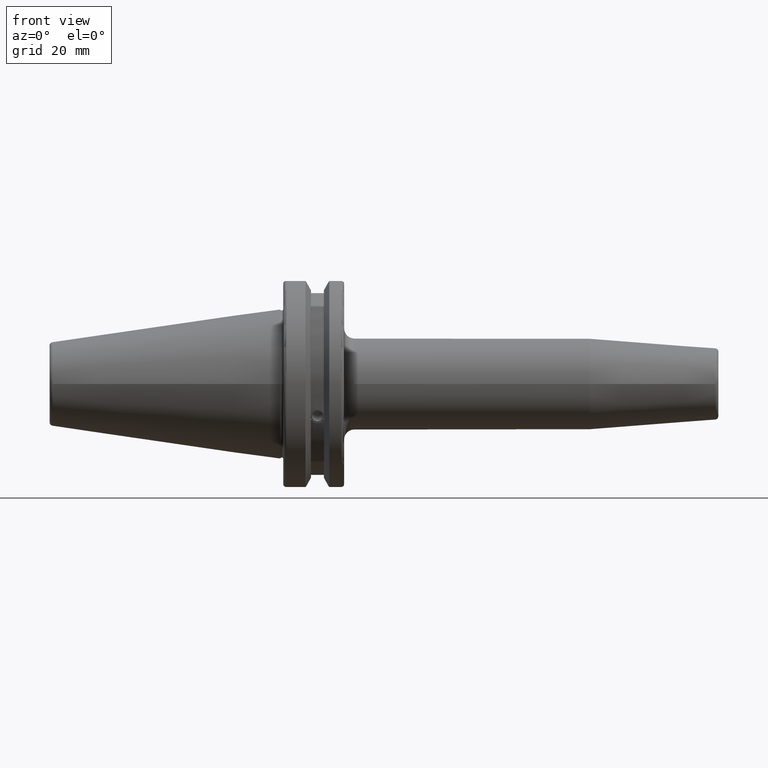
[diagram: clean part render]
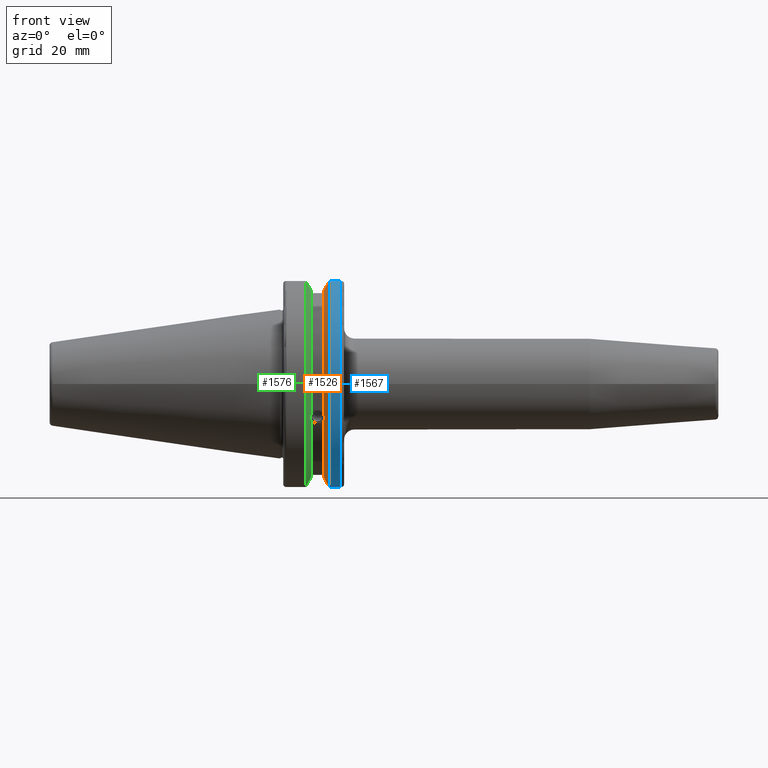
[diagram: same view with three faces highlighted in distinct colors, each labeled with its STEP entity id]
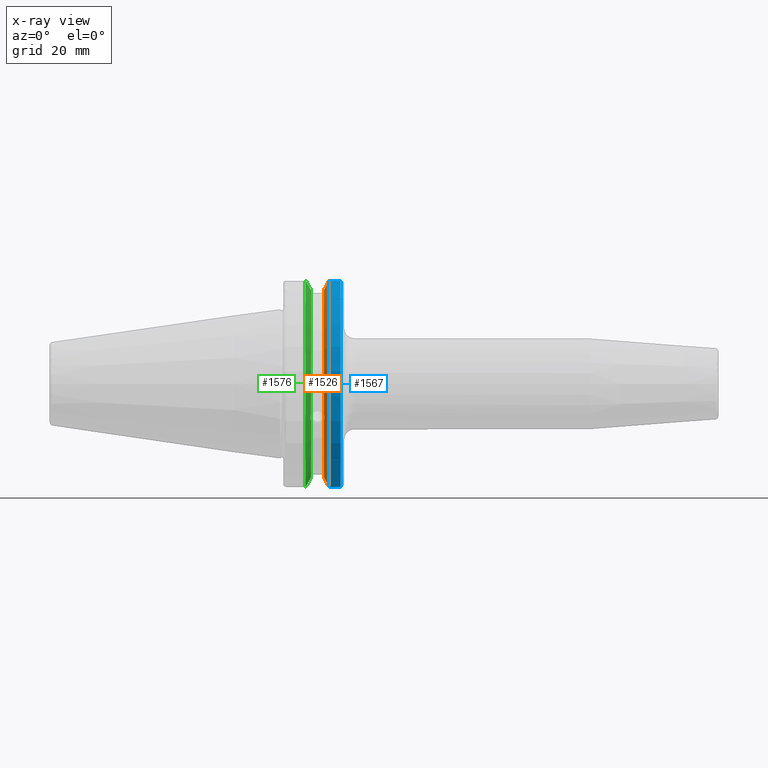
[diagram: x-ray of the same camera — body ghosted, the three highlighted faces saturated]
A machine part, front view with three faces highlighted in distinct colors.
The next image is the same camera in x-ray (body ghosted, the three faces saturated) — at least one of them is partly hidden behind the body in this view.
Their STEP definitions:

[orange] entity #1526 — the highlighted conical surface has half-angle 60 deg.
#15=(
BOUNDED_CURVE()
B_SPLINE_CURVE(2,(#2561,#2562,#2563),.UNSPECIFIED.,.F.,.F.)
B_SPLINE_CURVE_WITH_KNOTS((3,3),(0.,0.276549142795441),.UNSPECIFIED.)
CURVE()
GEOMETRIC_REPRESENTATION_ITEM()
RATIONAL_B_SPLINE_CURVE((1.,1.00095203903848,1.0003161444499))
REPRESENTATION_ITEM('')
);
#16=(
BOUNDED_CURVE()
B_SPLINE_CURVE(2,(#2565,#2566,#2567),.UNSPECIFIED.,.F.,.F.)
B_SPLINE_CURVE_WITH_KNOTS((3,3),(0.,0.0639048713675827),.UNSPECIFIED.)
CURVE()
GEOMETRIC_REPRESENTATION_ITEM()
RATIONAL_B_SPLINE_CURVE((1.,1.0002844421829,1.00047644010585))
REPRESENTATION_ITEM('')
);
#17=(
BOUNDED_CURVE()
B_SPLINE_CURVE(2,(#2571,#2572,#2573),.UNSPECIFIED.,.F.,.F.)
B_SPLINE_CURVE_WITH_KNOTS((3,3),(0.329353533631235,0.393258405001021),
 .UNSPECIFIED.)
CURVE()
GEOMETRIC_REPRESENTATION_ITEM()
RATIONAL_B_SPLINE_CURVE((1.00047644010603,1.00028444218301,1.))
REPRESENTATION_ITEM('')
);
#18=(
BOUNDED_CURVE()
B_SPLINE_CURVE(2,(#2575,#2576,#2577),.UNSPECIFIED.,.F.,.F.)
B_SPLINE_CURVE_WITH_KNOTS((3,3),(0.0550586467398929,0.331607789535851),
 .UNSPECIFIED.)
CURVE()
GEOMETRIC_REPRESENTATION_ITEM()
RATIONAL_B_SPLINE_CURVE((1.00031614444973,1.00095203903796,1.))
REPRESENTATION_ITEM('')
);
#36=B_SPLINE_CURVE_WITH_KNOTS('',3,(#2468,#2469,#2470,#2471,#2472,#2473,
#2474,#2475),.UNSPECIFIED.,.F.,.F.,(4,2,2,4),(0.451995700189025,0.464547828547662,
0.504528771685167,0.544509714822672),.UNSPECIFIED.);
#40=B_SPLINE_CURVE_WITH_KNOTS('',3,(#2530,#2531,#2532,#2533,#2534,#2535,
#2536,#2537),.UNSPECIFIED.,.F.,.F.,(4,2,2,4),(0.544509714822672,0.584490657960178,
0.624471601097683,0.637023729456322),.UNSPECIFIED.);
#201=FACE_OUTER_BOUND('',#299,.T.);
#299=EDGE_LOOP('',(#1153,#1154,#1155,#1156,#1157,#1158,#1159,#1160,#1161));
#583=CIRCLE('',#1677,28.9593772964944);
#584=CIRCLE('',#1678,31.75);
#585=CIRCLE('',#1679,28.9593772964944);
#675=VERTEX_POINT('',#2465);
#676=VERTEX_POINT('',#2467);
#683=VERTEX_POINT('',#2528);
#689=VERTEX_POINT('',#2558);
#690=VERTEX_POINT('',#2560);
#691=VERTEX_POINT('',#2564);
#692=VERTEX_POINT('',#2568);
#693=VERTEX_POINT('',#2570);
#694=VERTEX_POINT('',#2574);
#847=EDGE_CURVE('',#676,#675,#36,.T.);
#855=EDGE_CURVE('',#675,#683,#40,.T.);
#864=EDGE_CURVE('',#683,#689,#583,.T.);
#865=EDGE_CURVE('',#689,#690,#15,.T.);
#866=EDGE_CURVE('',#691,#690,#16,.T.);
#867=EDGE_CURVE('',#692,#691,#584,.T.);
#868=EDGE_CURVE('',#693,#692,#17,.T.);
#869=EDGE_CURVE('',#693,#694,#18,.T.);
#870=EDGE_CURVE('',#694,#676,#585,.T.);
#1153=ORIENTED_EDGE('',*,*,#847,.T.);
#1154=ORIENTED_EDGE('',*,*,#855,.T.);
#1155=ORIENTED_EDGE('',*,*,#864,.T.);
#1156=ORIENTED_EDGE('',*,*,#865,.T.);
#1157=ORIENTED_EDGE('',*,*,#866,.F.);
#1158=ORIENTED_EDGE('',*,*,#867,.F.);
#1159=ORIENTED_EDGE('',*,*,#868,.F.);
#1160=ORIENTED_EDGE('',*,*,#869,.T.);
#1161=ORIENTED_EDGE('',*,*,#870,.T.);
#1491=CONICAL_SURFACE('',#1676,30.3546886482472,1.0471975511966);
#1526=ADVANCED_FACE('',(#201),#1491,.T.);
#1676=AXIS2_PLACEMENT_3D('',#2557,#1955,#1956);
#1677=AXIS2_PLACEMENT_3D('',#2559,#1957,#1958);
#1678=AXIS2_PLACEMENT_3D('',#2569,#1959,#1960);
#1679=AXIS2_PLACEMENT_3D('',#2578,#1961,#1962);
#1955=DIRECTION('center_axis',(1.,0.,0.));
#1956=DIRECTION('ref_axis',(0.,-1.,-1.22464679914735E-16));
#1957=DIRECTION('center_axis',(1.,0.,0.));
#1958=DIRECTION('ref_axis',(0.,0.,-1.));
#1959=DIRECTION('center_axis',(1.,0.,0.));
#1960=DIRECTION('ref_axis',(0.,0.,-1.));
#1961=DIRECTION('center_axis',(1.,0.,0.));
#1962=DIRECTION('ref_axis',(0.,0.,-1.));
#2465=CARTESIAN_POINT('',(13.2341,-27.51401829017,-10.0142836826777));
#2467=CARTESIAN_POINT('',(13.0491,-27.4956274489925,-9.09043478536245));
#2468=CARTESIAN_POINT('Ctrl Pts',(13.0491,-27.4956274489925,-9.09043478536245));
#2469=CARTESIAN_POINT('Ctrl Pts',(13.0632204071996,-27.5087667900418,-9.12860597076217));
#2470=CARTESIAN_POINT('Ctrl Pts',(13.0766929817857,-27.5206055003513,-9.16696618806877));
#2471=CARTESIAN_POINT('Ctrl Pts',(13.130081441159,-27.5642934663232,-9.32791534028656));
#2472=CARTESIAN_POINT('Ctrl Pts',(13.1682197084175,-27.5867382255984,-9.46717946402648));
#2473=CARTESIAN_POINT('Ctrl Pts',(13.2204106446058,-27.5847569104122,-9.74771639360671));
#2474=CARTESIAN_POINT('Ctrl Pts',(13.2341,-27.559599249844,-9.8890510252165));
#2475=CARTESIAN_POINT('Ctrl Pts',(13.2341,-27.51401829017,-10.0142836826777));
#2528=CARTESIAN_POINT('',(13.0491,-26.9060914640648,-10.7101715919071));
#2530=CARTESIAN_POINT('Ctrl Pts',(13.2341,-27.51401829017,-10.0142836826777));
#2531=CARTESIAN_POINT('Ctrl Pts',(13.2341,-27.4684373304961,-10.139516340139));
#2532=CARTESIAN_POINT('Ctrl Pts',(13.2204106446058,-27.3968610665578,-10.2639559818059));
#2533=CARTESIAN_POINT('Ctrl Pts',(13.1682197084175,-27.2180531796526,-10.4801333026531));
#2534=CARTESIAN_POINT('Ctrl Pts',(13.130081441159,-27.1113422433189,-10.5723885976054));
#2535=CARTESIAN_POINT('Ctrl Pts',(13.0766929817857,-26.9744191989197,-10.6676007180673));
#2536=CARTESIAN_POINT('Ctrl Pts',(13.0632204071996,-26.9406927482839,-10.6893765730703));
#2537=CARTESIAN_POINT('Ctrl Pts',(13.0491,-26.9060914640648,-10.7101715919071));
#2557=CARTESIAN_POINT('Origin',(13.8546833845378,0.,0.));
#2558=CARTESIAN_POINT('',(13.0491,-8.19,-27.7771386827498));
#2559=CARTESIAN_POINT('Origin',(13.0491,0.,0.));
#2560=CARTESIAN_POINT('',(14.3815146964874,-8.19,-30.1755016258903));
#2561=CARTESIAN_POINT('Ctrl Pts',(13.0491,-8.19,-27.7771386827498));
#2562=CARTESIAN_POINT('Ctrl Pts',(13.6877364384886,-8.19,-28.930368953993));
#2563=CARTESIAN_POINT('Ctrl Pts',(14.3815146964874,-8.19,-30.1755016258903));
#2564=CARTESIAN_POINT('',(14.6602667690756,-8.67204822802686,-30.5427254764662));
#2565=CARTESIAN_POINT('Ctrl Pts',(14.6602667690756,-8.67204822802687,-30.5427254764662));
#2566=CARTESIAN_POINT('Ctrl Pts',(14.5192085187837,-8.42917748262644,-30.357706789263));
#2567=CARTESIAN_POINT('Ctrl Pts',(14.3815146964874,-8.19,-30.1755016258903));
#2568=CARTESIAN_POINT('',(14.6602667690756,-8.67204822802685,30.5427254764662));
#2569=CARTESIAN_POINT('Origin',(14.6602667690756,0.,0.));
#2570=CARTESIAN_POINT('',(14.3815146964874,-8.18999999999999,30.1755016258903));
#2571=CARTESIAN_POINT('Ctrl Pts',(14.3815146964874,-8.19,30.1755016258903));
#2572=CARTESIAN_POINT('Ctrl Pts',(14.5192085187884,-8.42917748263459,30.3577067892692));
#2573=CARTESIAN_POINT('Ctrl Pts',(14.6602667690756,-8.67204822802686,30.5427254764662));
#2574=CARTESIAN_POINT('',(13.0491,-8.19,27.7771386827498));
#2575=CARTESIAN_POINT('Ctrl Pts',(14.3815146964874,-8.18999999999999,30.1755016258903));
#2576=CARTESIAN_POINT('Ctrl Pts',(13.6877364384816,-8.18999999999999,28.9303689539805));
#2577=CARTESIAN_POINT('Ctrl Pts',(13.0491,-8.19,27.7771386827498));
#2578=CARTESIAN_POINT('Origin',(13.0491,0.,0.));

[blue] entity #1567 — the highlighted cylindrical surface (partial cylindrical patch) has radius 31.75 mm, axis along (1, 0, 0).
#168=CYLINDRICAL_SURFACE('',#1760,31.75);
#242=FACE_OUTER_BOUND('',#346,.T.);
#346=EDGE_LOOP('',(#1396,#1397,#1398,#1399));
#453=LINE('',#3018,#546);
#454=LINE('',#3020,#547);
#546=VECTOR('',#2176,10.);
#547=VECTOR('',#2179,10.);
#584=CIRCLE('',#1678,31.75);
#607=CIRCLE('',#1732,31.75);
#691=VERTEX_POINT('',#2564);
#692=VERTEX_POINT('',#2568);
#755=VERTEX_POINT('',#2863);
#756=VERTEX_POINT('',#2872);
#867=EDGE_CURVE('',#692,#691,#584,.T.);
#953=EDGE_CURVE('',#755,#756,#607,.T.);
#997=EDGE_CURVE('',#756,#691,#453,.T.);
#998=EDGE_CURVE('',#692,#755,#454,.T.);
#1396=ORIENTED_EDGE('',*,*,#953,.F.);
#1397=ORIENTED_EDGE('',*,*,#998,.F.);
#1398=ORIENTED_EDGE('',*,*,#867,.T.);
#1399=ORIENTED_EDGE('',*,*,#997,.F.);
#1567=ADVANCED_FACE('',(#242),#168,.T.);
#1678=AXIS2_PLACEMENT_3D('',#2569,#1959,#1960);
#1732=AXIS2_PLACEMENT_3D('',#2873,#2100,#2101);
#1760=AXIS2_PLACEMENT_3D('',#3019,#2177,#2178);
#1959=DIRECTION('center_axis',(1.,0.,0.));
#1960=DIRECTION('ref_axis',(0.,0.,-1.));
#2100=DIRECTION('center_axis',(1.,0.,0.));
#2101=DIRECTION('ref_axis',(0.,-1.,1.60812264967664E-16));
#2176=DIRECTION('',(-1.,0.,0.));
#2177=DIRECTION('center_axis',(1.,0.,0.));
#2178=DIRECTION('ref_axis',(0.,-1.,1.22464679914735E-16));
#2179=DIRECTION('',(1.,0.,0.));
#2564=CARTESIAN_POINT('',(14.6602667690756,-8.67204822802686,-30.5427254764662));
#2568=CARTESIAN_POINT('',(14.6602667690756,-8.67204822802685,30.5427254764662));
#2569=CARTESIAN_POINT('Origin',(14.6602667690756,0.,0.));
#2863=CARTESIAN_POINT('',(18.05,-8.67204822802685,30.5427254764662));
#2872=CARTESIAN_POINT('',(18.05,-8.67204822802686,-30.5427254764662));
#2873=CARTESIAN_POINT('Origin',(18.05,0.,0.));
#3018=CARTESIAN_POINT('',(16.8551333845378,-8.67204822802686,-30.5427254764662));
#3019=CARTESIAN_POINT('Origin',(16.8551333845378,0.,0.));
#3020=CARTESIAN_POINT('',(16.8551333845378,-8.67204822802685,30.5427254764662));

[green] entity #1576 — the highlighted conical surface has half-angle 60 deg.
#24=(
BOUNDED_CURVE()
B_SPLINE_CURVE(2,(#2894,#2895,#2896),.UNSPECIFIED.,.F.,.F.)
B_SPLINE_CURVE_WITH_KNOTS((3,3),(0.,0.276549142797088),.UNSPECIFIED.)
CURVE()
GEOMETRIC_REPRESENTATION_ITEM()
RATIONAL_B_SPLINE_CURVE((1.,1.00095203903867,1.00031614444995))
REPRESENTATION_ITEM('')
);
#25=(
BOUNDED_CURVE()
B_SPLINE_CURVE(2,(#2906,#2907,#2908),.UNSPECIFIED.,.F.,.F.)
B_SPLINE_CURVE_WITH_KNOTS((3,3),(0.0550586467393311,0.331607789535851),
 .UNSPECIFIED.)
CURVE()
GEOMETRIC_REPRESENTATION_ITEM()
RATIONAL_B_SPLINE_CURVE((1.00031614445049,1.00095203904028,1.))
REPRESENTATION_ITEM('')
);
#26=(
BOUNDED_CURVE()
B_SPLINE_CURVE(2,(#2941,#2942,#2943),.UNSPECIFIED.,.F.,.F.)
B_SPLINE_CURVE_WITH_KNOTS((3,3),(0.,0.0639048713675838),.UNSPECIFIED.)
CURVE()
GEOMETRIC_REPRESENTATION_ITEM()
RATIONAL_B_SPLINE_CURVE((1.,1.00028444218292,1.00047644010588))
REPRESENTATION_ITEM('')
);
#27=(
BOUNDED_CURVE()
B_SPLINE_CURVE(2,(#2949,#2950,#2951),.UNSPECIFIED.,.F.,.F.)
B_SPLINE_CURVE_WITH_KNOTS((3,3),(0.329353533631213,0.393258405001024),
 .UNSPECIFIED.)
CURVE()
GEOMETRIC_REPRESENTATION_ITEM()
RATIONAL_B_SPLINE_CURVE((1.00047644010576,1.00028444218285,1.))
REPRESENTATION_ITEM('')
);
#38=B_SPLINE_CURVE_WITH_KNOTS('',3,(#2496,#2497,#2498,#2499,#2500,#2501,
#2502,#2503,#2504,#2505,#2506,#2507,#2508,#2509),.UNSPECIFIED.,.F.,.F.,
(4,2,2,2,2,2,4),(0.451995700189025,0.464547828547662,0.504528771685168,
0.544509714822673,0.584490657960178,0.624471601097683,0.637023729456319),
 .UNSPECIFIED.);
#251=FACE_OUTER_BOUND('',#355,.T.);
#355=EDGE_LOOP('',(#1435,#1436,#1437,#1438,#1439,#1440,#1441,#1442));
#588=CIRCLE('',#1685,28.9593772964944);
#609=CIRCLE('',#1739,31.75);
#621=CIRCLE('',#1774,28.9593772964944);
#679=VERTEX_POINT('',#2493);
#680=VERTEX_POINT('',#2495);
#697=VERTEX_POINT('',#2588);
#758=VERTEX_POINT('',#2891);
#759=VERTEX_POINT('',#2893);
#762=VERTEX_POINT('',#2905);
#766=VERTEX_POINT('',#2939);
#767=VERTEX_POINT('',#2945);
#851=EDGE_CURVE('',#680,#679,#38,.T.);
#875=EDGE_CURVE('',#680,#697,#588,.T.);
#958=EDGE_CURVE('',#759,#758,#24,.T.);
#964=EDGE_CURVE('',#762,#697,#25,.T.);
#972=EDGE_CURVE('',#766,#758,#26,.T.);
#974=EDGE_CURVE('',#766,#767,#609,.T.);
#975=EDGE_CURVE('',#762,#767,#27,.T.);
#1008=EDGE_CURVE('',#759,#679,#621,.T.);
#1435=ORIENTED_EDGE('',*,*,#851,.T.);
#1436=ORIENTED_EDGE('',*,*,#1008,.F.);
#1437=ORIENTED_EDGE('',*,*,#958,.T.);
#1438=ORIENTED_EDGE('',*,*,#972,.F.);
#1439=ORIENTED_EDGE('',*,*,#974,.T.);
#1440=ORIENTED_EDGE('',*,*,#975,.F.);
#1441=ORIENTED_EDGE('',*,*,#964,.T.);
#1442=ORIENTED_EDGE('',*,*,#875,.F.);
#1497=CONICAL_SURFACE('',#1773,30.3546886482472,1.0471975511966);
#1576=ADVANCED_FACE('',(#251),#1497,.T.);
#1685=AXIS2_PLACEMENT_3D('',#2589,#1975,#1976);
#1739=AXIS2_PLACEMENT_3D('',#2947,#2125,#2126);
#1773=AXIS2_PLACEMENT_3D('',#3044,#2208,#2209);
#1774=AXIS2_PLACEMENT_3D('',#3045,#2210,#2211);
#1975=DIRECTION('center_axis',(1.,0.,0.));
#1976=DIRECTION('ref_axis',(0.,0.,-1.));
#2125=DIRECTION('center_axis',(1.,0.,0.));
#2126=DIRECTION('ref_axis',(0.,0.,-1.));
#2208=DIRECTION('center_axis',(-1.,0.,0.));
#2209=DIRECTION('ref_axis',(0.,-1.,-1.22464679914735E-16));
#2210=DIRECTION('center_axis',(1.,0.,0.));
#2211=DIRECTION('ref_axis',(0.,0.,-1.));
#2493=CARTESIAN_POINT('',(9.2191,-27.4956274489925,-9.09043478536247));
#2495=CARTESIAN_POINT('',(9.21909999999999,-26.9060914640648,-10.7101715919071));
#2496=CARTESIAN_POINT('Ctrl Pts',(9.21909999999999,-26.9060914640648,-10.7101715919071));
#2497=CARTESIAN_POINT('Ctrl Pts',(9.20497959280038,-26.9406927482839,-10.6893765730703));
#2498=CARTESIAN_POINT('Ctrl Pts',(9.19150701821433,-26.9744191989197,-10.6676007180673));
#2499=CARTESIAN_POINT('Ctrl Pts',(9.13811855884095,-27.1113422433188,-10.5723885976054));
#2500=CARTESIAN_POINT('Ctrl Pts',(9.09998029158246,-27.2180531796526,-10.4801333026531));
#2501=CARTESIAN_POINT('Ctrl Pts',(9.04778935539424,-27.3968610665578,-10.2639559818059));
#2502=CARTESIAN_POINT('Ctrl Pts',(9.0341,-27.4684373304961,-10.139516340139));
#2503=CARTESIAN_POINT('Ctrl Pts',(9.0341,-27.559599249844,-9.8890510252165));
#2504=CARTESIAN_POINT('Ctrl Pts',(9.04778935539424,-27.5847569104121,-9.74771639360671));
#2505=CARTESIAN_POINT('Ctrl Pts',(9.09998029158246,-27.5867382255984,-9.46717946402648));
#2506=CARTESIAN_POINT('Ctrl Pts',(9.13811855884095,-27.5642934663232,-9.32791534028655));
#2507=CARTESIAN_POINT('Ctrl Pts',(9.19150701821433,-27.5206055003512,-9.16696618806878));
#2508=CARTESIAN_POINT('Ctrl Pts',(9.20497959280038,-27.5087667900418,-9.12860597076219));
#2509=CARTESIAN_POINT('Ctrl Pts',(9.21909999999999,-27.4956274489925,-9.09043478536247));
#2588=CARTESIAN_POINT('',(9.2191,-8.19,-27.7771386827498));
#2589=CARTESIAN_POINT('Origin',(9.2191,0.,0.));
#2891=CARTESIAN_POINT('',(7.88668530351255,-8.19,30.1755016258903));
#2893=CARTESIAN_POINT('',(9.2191,-8.19,27.7771386827498));
#2894=CARTESIAN_POINT('Ctrl Pts',(9.2191,-8.19,27.7771386827498));
#2895=CARTESIAN_POINT('Ctrl Pts',(8.58046356153227,-8.19,28.9303689539555));
#2896=CARTESIAN_POINT('Ctrl Pts',(7.88668530351255,-8.19,30.1755016258903));
#2905=CARTESIAN_POINT('',(7.88668530351256,-8.19,-30.1755016258903));
#2906=CARTESIAN_POINT('Ctrl Pts',(7.88668530351256,-8.19,-30.1755016258903));
#2907=CARTESIAN_POINT('Ctrl Pts',(8.5804635615239,-8.19,-28.9303689539705));
#2908=CARTESIAN_POINT('Ctrl Pts',(9.2191,-8.19,-27.7771386827498));
#2939=CARTESIAN_POINT('',(7.60793323092436,-8.67204822802685,30.5427254764662));
#2941=CARTESIAN_POINT('Ctrl Pts',(7.60793323092436,-8.67204822802685,30.5427254764662));
#2942=CARTESIAN_POINT('Ctrl Pts',(7.74899148121628,-8.42917748262643,30.3577067892629));
#2943=CARTESIAN_POINT('Ctrl Pts',(7.88668530351255,-8.19,30.1755016258903));
#2945=CARTESIAN_POINT('',(7.60793323092436,-8.67204822802685,-30.5427254764662));
#2947=CARTESIAN_POINT('Origin',(7.60793323092436,0.,0.));
#2949=CARTESIAN_POINT('Ctrl Pts',(7.88668530351256,-8.19,-30.1755016258903));
#2950=CARTESIAN_POINT('Ctrl Pts',(7.7489914812116,-8.42917748263465,-30.3577067892692));
#2951=CARTESIAN_POINT('Ctrl Pts',(7.60793323092436,-8.67204822802685,-30.5427254764662));
#3044=CARTESIAN_POINT('Origin',(8.41351661546217,0.,0.));
#3045=CARTESIAN_POINT('Origin',(9.2191,0.,0.));